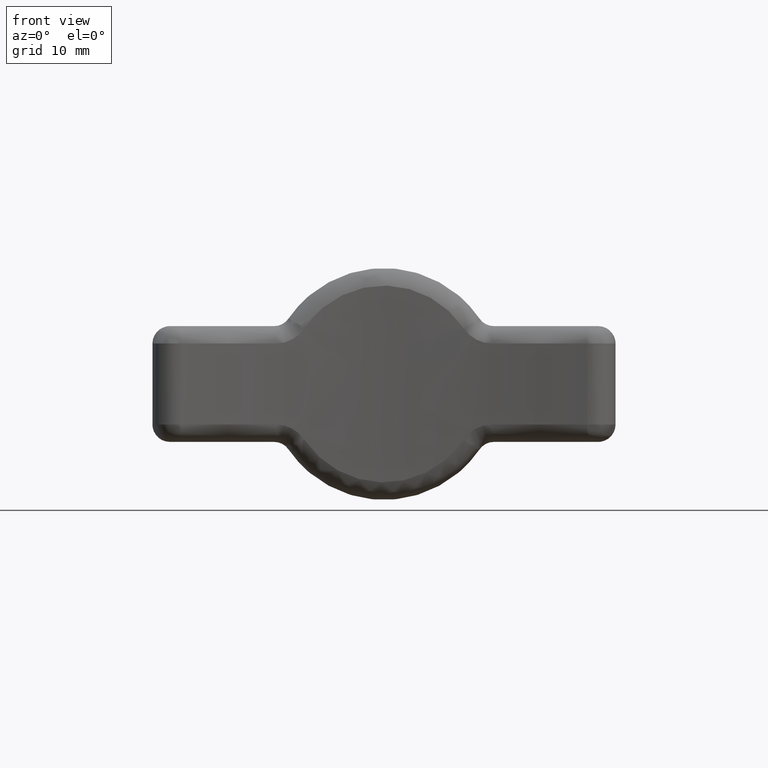
[diagram: clean part render]
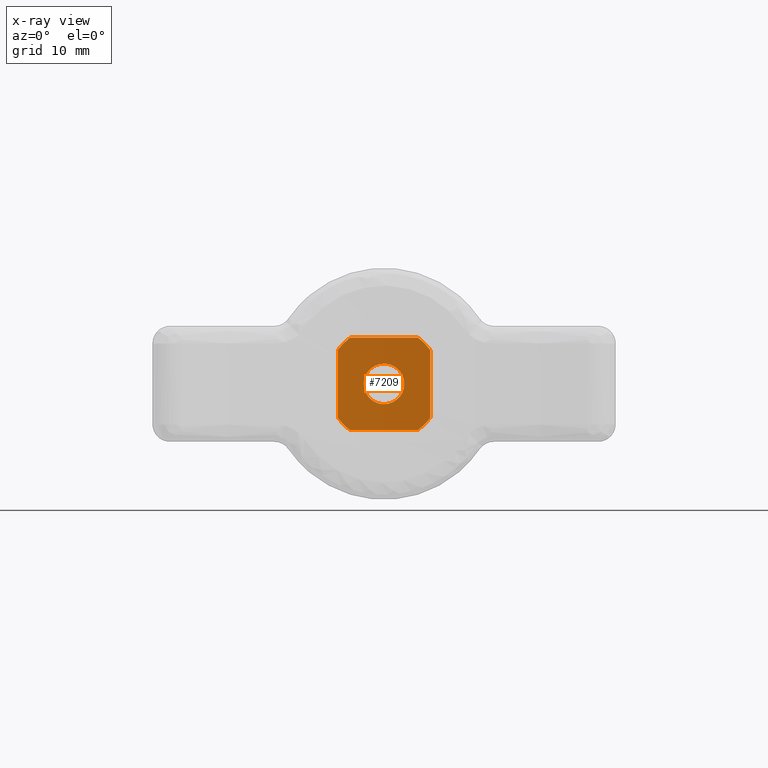
[diagram: x-ray — body ghosted, one internal face saturated and labeled with its STEP entity id]
A machine part, front view, then the same camera in x-ray: the body is ghosted and one INTERNAL B-rep face — a face not visible from any outside direction — is saturated and labeled: STEP entity #7209.
In plain terms, the highlighted face is a freeform B-spline surface patch.
Its self-contained STEP definition (entity closure, byte-faithful):
#729=CARTESIAN_POINT('',(-1.746735980196920,10.900000517722940,0.106834949371645));
#730=VERTEX_POINT('',#729);
#736=CARTESIAN_POINT('',(0.0,10.900000517722940,1.750000083120495));
#737=VERTEX_POINT('',#736);
#738=CARTESIAN_POINT('',(0.0,10.900000517722940,1.750000083120495));
#739=CARTESIAN_POINT('',(-1.646235695066808,10.900000517722942,1.750000083120495));
#740=CARTESIAN_POINT('',(-1.746735980196920,10.900000517722937,0.106834949371645));
#748=(BOUNDED_CURVE()B_SPLINE_CURVE(2,(#738,#739,#740),.UNSPECIFIED.,.F.,.U.)B_SPLINE_CURVE_WITH_KNOTS((3,3),(0.500000000000000,0.739332962219987),.UNSPECIFIED.)CURVE()GEOMETRIC_REPRESENTATION_ITEM()RATIONAL_B_SPLINE_CURVE((1.0,0.719603993308919,0.976072041626091))REPRESENTATION_ITEM(''));
#749=EDGE_CURVE('',#737,#730,#748,.T.);
#751=CARTESIAN_POINT('',(1.737766753663727,10.900000517722940,-0.206559920562458));
#752=VERTEX_POINT('',#751);
#753=CARTESIAN_POINT('',(1.737766753663727,10.900000517722946,-0.206559920562458));
#754=CARTESIAN_POINT('',(1.750000083120495,10.900000517722940,-0.103642214416727));
#755=CARTESIAN_POINT('',(1.750000083120495,10.900000517722940,0.0));
#756=CARTESIAN_POINT('',(1.750000083120495,10.900000517722940,1.750000083120495));
#757=CARTESIAN_POINT('',(0.0,10.900000517722940,1.750000083120495));
#765=(BOUNDED_CURVE()B_SPLINE_CURVE(2,(#753,#754,#755,#756,#757),.UNSPECIFIED.,.F.,.U.)B_SPLINE_CURVE_WITH_KNOTS((3,2,3),(0.229562473495792,0.250000000000000,0.500000000000000),.UNSPECIFIED.)CURVE()GEOMETRIC_REPRESENTATION_ITEM()RATIONAL_B_SPLINE_CURVE((0.956026754148974,0.976055948310389,1.0,0.707106781186548,1.0))REPRESENTATION_ITEM(''));
#766=EDGE_CURVE('',#752,#737,#765,.T.);
#810=CARTESIAN_POINT('',(0.0,10.900000517722940,-1.750000083120495));
#811=VERTEX_POINT('',#810);
#812=CARTESIAN_POINT('',(0.0,10.900000517722940,-1.750000083120495));
#813=CARTESIAN_POINT('',(1.554305494056533,10.900000517722942,-1.750000083120495));
#814=CARTESIAN_POINT('',(1.737766753663727,10.900000517722942,-0.206559920562458));
#822=(BOUNDED_CURVE()B_SPLINE_CURVE(2,(#812,#813,#814),.UNSPECIFIED.,.F.,.U.)B_SPLINE_CURVE_WITH_KNOTS((3,3),(0.0,0.229562473495792),.UNSPECIFIED.)CURVE()GEOMETRIC_REPRESENTATION_ITEM()RATIONAL_B_SPLINE_CURVE((1.0,0.731050832876159,0.956026754148974))REPRESENTATION_ITEM(''));
#823=EDGE_CURVE('',#811,#752,#822,.T.);
#825=CARTESIAN_POINT('',(-1.746735980196920,10.900000517722937,0.106834949371645));
#826=CARTESIAN_POINT('',(-1.750000083120495,10.900000517722942,0.053467338423663));
#827=CARTESIAN_POINT('',(-1.750000083120495,10.900000517722940,0.0));
#828=CARTESIAN_POINT('',(-1.750000083120495,10.900000517722940,-1.750000083120495));
#829=CARTESIAN_POINT('',(0.0,10.900000517722940,-1.750000083120495));
#837=(BOUNDED_CURVE()B_SPLINE_CURVE(2,(#825,#826,#827,#828,#829),.UNSPECIFIED.,.F.,.U.)B_SPLINE_CURVE_WITH_KNOTS((3,2,3),(0.739332962219987,0.750000000000000,1.0),.UNSPECIFIED.)CURVE()GEOMETRIC_REPRESENTATION_ITEM()RATIONAL_B_SPLINE_CURVE((0.976072041626092,0.987502787877629,1.0,0.707106781186548,1.0))REPRESENTATION_ITEM(''));
#838=EDGE_CURVE('',#730,#811,#837,.T.);
#1162=CARTESIAN_POINT('',(-4.000000189989805,10.900000517723001,-2.915904800862730));
#1163=VERTEX_POINT('',#1162);
#1169=CARTESIAN_POINT('',(-2.915904800862735,10.900000517723001,-4.000000189989805));
#1170=VERTEX_POINT('',#1169);
#1171=CARTESIAN_POINT('',(-4.000000189989805,10.900000517723001,-2.915904800862730));
#1172=CARTESIAN_POINT('',(-3.542920609814849,10.900000517722940,-3.542920609814845));
#1173=CARTESIAN_POINT('',(-2.915904800862735,10.900000517723001,-4.000000189989805));
#1181=(BOUNDED_CURVE()B_SPLINE_CURVE(2,(#1171,#1172,#1173),.UNSPECIFIED.,.F.,.U.)CURVE()GEOMETRIC_REPRESENTATION_ITEM()QUASI_UNIFORM_CURVE()RATIONAL_B_SPLINE_CURVE((1.0,0.987935976726812,1.0))REPRESENTATION_ITEM(''));
#1182=EDGE_CURVE('',#1163,#1170,#1181,.T.);
#1206=CARTESIAN_POINT('',(2.915904800862735,10.900000517723001,-4.000000189989805));
#1207=VERTEX_POINT('',#1206);
#1213=CARTESIAN_POINT('',(4.000000189989805,10.900000517723001,-2.915904800862735));
#1214=VERTEX_POINT('',#1213);
#1215=CARTESIAN_POINT('',(2.915904800862735,10.900000517723001,-4.000000189989805));
#1216=CARTESIAN_POINT('',(3.542920609814848,10.900000517722940,-3.542920609814845));
#1217=CARTESIAN_POINT('',(4.000000189989805,10.900000517723001,-2.915904800862735));
#1225=(BOUNDED_CURVE()B_SPLINE_CURVE(2,(#1215,#1216,#1217),.UNSPECIFIED.,.F.,.U.)CURVE()GEOMETRIC_REPRESENTATION_ITEM()QUASI_UNIFORM_CURVE()RATIONAL_B_SPLINE_CURVE((1.0,0.987935976726812,1.0))REPRESENTATION_ITEM(''));
#1226=EDGE_CURVE('',#1207,#1214,#1225,.T.);
#1337=CARTESIAN_POINT('',(4.000000189989800,10.900000517723001,2.915904800862735));
#1338=VERTEX_POINT('',#1337);
#1344=CARTESIAN_POINT('',(2.915904800862735,10.900000517723001,4.000000189989805));
#1345=VERTEX_POINT('',#1344);
#1346=CARTESIAN_POINT('',(4.000000189989800,10.900000517723001,2.915904800862735));
#1347=CARTESIAN_POINT('',(3.542920609814845,10.900000517722940,3.542920609814848));
#1348=CARTESIAN_POINT('',(2.915904800862735,10.900000517723001,4.000000189989805));
#1356=(BOUNDED_CURVE()B_SPLINE_CURVE(2,(#1346,#1347,#1348),.UNSPECIFIED.,.F.,.U.)CURVE()GEOMETRIC_REPRESENTATION_ITEM()QUASI_UNIFORM_CURVE()RATIONAL_B_SPLINE_CURVE((1.0,0.987935976726812,1.0))REPRESENTATION_ITEM(''));
#1357=EDGE_CURVE('',#1338,#1345,#1356,.T.);
#1381=CARTESIAN_POINT('',(-2.915904800862735,10.900000517723001,4.000000189989805));
#1382=VERTEX_POINT('',#1381);
#1388=CARTESIAN_POINT('',(-4.000000189989805,10.900000517723001,2.915904800862735));
#1389=VERTEX_POINT('',#1388);
#1390=CARTESIAN_POINT('',(-2.915904800862735,10.900000517723001,4.000000189989805));
#1391=CARTESIAN_POINT('',(-3.542920609814849,10.900000517722940,3.542920609814845));
#1392=CARTESIAN_POINT('',(-4.000000189989805,10.900000517723001,2.915904800862735));
#1400=(BOUNDED_CURVE()B_SPLINE_CURVE(2,(#1390,#1391,#1392),.UNSPECIFIED.,.F.,.U.)CURVE()GEOMETRIC_REPRESENTATION_ITEM()QUASI_UNIFORM_CURVE()RATIONAL_B_SPLINE_CURVE((1.0,0.987935976726812,1.0))REPRESENTATION_ITEM(''));
#1401=EDGE_CURVE('',#1382,#1389,#1400,.T.);
#6240=CARTESIAN_POINT('',(2.915904800862735,10.900000517723001,4.000000189989805));
#6241=CARTESIAN_POINT('',(-2.915904800862735,10.900000517723001,4.000000189989805));
#6242=QUASI_UNIFORM_CURVE('',1,(#6240,#6241),.UNSPECIFIED.,.F.,.U.);
#6243=EDGE_CURVE('',#1345,#1382,#6242,.T.);
#6271=CARTESIAN_POINT('',(-4.000000189989805,10.900000517723001,-2.915904800862730));
#6272=CARTESIAN_POINT('',(-4.000000189989805,10.900000517723001,2.915904800862735));
#6273=QUASI_UNIFORM_CURVE('',1,(#6271,#6272),.UNSPECIFIED.,.F.,.U.);
#6274=EDGE_CURVE('',#1163,#1389,#6273,.T.);
#6301=CARTESIAN_POINT('',(2.915904800862735,10.900000517723001,-4.000000189989805));
#6302=CARTESIAN_POINT('',(-2.915904800862735,10.900000517723001,-4.000000189989805));
#6303=QUASI_UNIFORM_CURVE('',1,(#6301,#6302),.UNSPECIFIED.,.F.,.U.);
#6304=EDGE_CURVE('',#1207,#1170,#6303,.T.);
#6332=CARTESIAN_POINT('',(4.000000189989800,10.900000517723001,2.915904800862735));
#6333=CARTESIAN_POINT('',(4.000000189989805,10.900000517723001,-2.915904800862735));
#6334=QUASI_UNIFORM_CURVE('',1,(#6332,#6333),.UNSPECIFIED.,.F.,.U.);
#6335=EDGE_CURVE('',#1338,#1214,#6334,.T.);
#7188=CARTESIAN_POINT('',(-4.399600014686053,10.900000517722940,4.399600014686053));
#7189=CARTESIAN_POINT('',(-4.399600014686053,10.900000517722940,-4.399599800109322));
#7190=CARTESIAN_POINT('',(4.399599800109322,10.900000517722940,4.399600014686053));
#7191=CARTESIAN_POINT('',(4.399599800109322,10.900000517722940,-4.399599800109322));
#7192=B_SPLINE_SURFACE_WITH_KNOTS('',1,1,((#7188,#7190),(#7189,#7191)),.UNSPECIFIED.,.F.,.F.,.U.,(2,2),(2,2),(0.0,8.799199814795376),(0.0,8.799199814795376),.UNSPECIFIED.);
#7193=ORIENTED_EDGE('',*,*,#6243,.F.);
#7194=ORIENTED_EDGE('',*,*,#1357,.F.);
#7195=ORIENTED_EDGE('',*,*,#6335,.T.);
#7196=ORIENTED_EDGE('',*,*,#1226,.F.);
#7197=ORIENTED_EDGE('',*,*,#6304,.T.);
#7198=ORIENTED_EDGE('',*,*,#1182,.F.);
#7199=ORIENTED_EDGE('',*,*,#6274,.T.);
#7200=ORIENTED_EDGE('',*,*,#1401,.F.);
#7201=EDGE_LOOP('',(#7193,#7194,#7195,#7196,#7197,#7198,#7199,#7200));
#7202=FACE_OUTER_BOUND('',#7201,.T.);
#7203=ORIENTED_EDGE('',*,*,#749,.T.);
#7204=ORIENTED_EDGE('',*,*,#838,.T.);
#7205=ORIENTED_EDGE('',*,*,#823,.T.);
#7206=ORIENTED_EDGE('',*,*,#766,.T.);
#7207=EDGE_LOOP('',(#7203,#7204,#7205,#7206));
#7208=FACE_BOUND('',#7207,.T.);
#7209=ADVANCED_FACE('',(#7202,#7208),#7192,.F.);